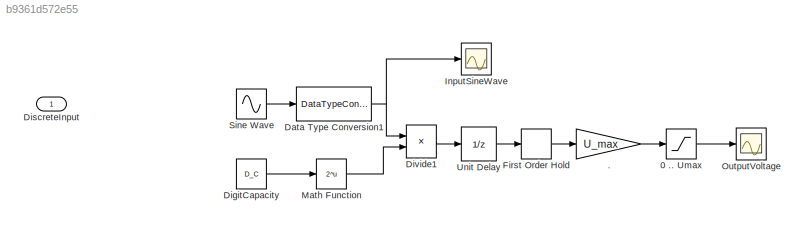
MODEL slx_b9361d572e55
KIND model
CONFIG AbsTol = auto
CONFIG EnableMultiTasking = off
CONFIG FixedStep = 0.001
CONFIG MaxStep = auto
CONFIG MinStep = auto
CONFIG RelTol = 1e-3
CONFIG SampleTimeConstraint = Unconstrained
CONFIG SolverName = FixedStepDiscrete
CONFIG StartTime = 0.0
CONFIG StopTime = 1
BLOCK [Gain] .
  Gain = U_max
BLOCK [Saturate] 0 .. Umax
  LowerLimit = 0
  UpperLimit = U_max
BLOCK [DataTypeConversion] Data Type Conversion1
  OutDataTypeStr = uint16
  RndMeth = Floor
  SaturateOnIntegerOverflow = off
BLOCK [Constant] DigitCapacity
  Value = D_C
BLOCK [Inport] DiscreteInput
BLOCK [Product] Divide1
  Inputs = */
BLOCK [FirstOrderHold] First Order Hold
  ErrorTolerance = inf
BLOCK [Scope] InputSineWave
  Floating = off
  NumInputPorts = 1
  ScopeSpecificationString = Simulink.scopes.TimeScopeBlockCfg('CurrentConfiguration', extmgr.ConfigurationSet(extmgr.Configuration('Core','General UI',true,'FigureColor',[1 1 1]),extmgr.Configuration('Core','Source UI',true),extmgr.Configuration('Sources','WiredSimulink',true,'DataLoggingVariableName','ScopeData1'),extmgr.Configuration('Visuals','Time Domain',true,'SerializedDisplays',{struct('MinYLimReal','-2047.875','MaxYL...<+1568ch>
BLOCK [Math] Math Function
  Operator = 2^u
BLOCK [Scope] OutputVoltage
  Floating = off
  NumInputPorts = 1
  ScopeSpecificationString = Simulink.scopes.TimeScopeBlockCfg('CurrentConfiguration', extmgr.ConfigurationSet(extmgr.Configuration('Core','General UI',true,'FigureColor',[1 1 1]),extmgr.Configuration('Core','Source UI',true),extmgr.Configuration('Sources','WiredSimulink',true),extmgr.Configuration('Visuals','Time Domain',true,'SerializedDisplays',{struct('MinYLimReal','-0.62496','MaxYLimReal','5.62466','YLabelReal','','MinYL...<+1477ch>
BLOCK [Sin] Sine Wave
  Amplitude = 2^D_C/2
  Bias = 2^D_C/2
  Frequency = 5
  Phase = -pi/2
  SampleTime = 0.01
BLOCK [UnitDelay] Unit Delay
  HasFrameUpgradeWarning = on
  SampleTime = -1
LINE .:1 -> 0 .. Umax:1
LINE 0 .. Umax:1 -> OutputVoltage:1
NET Data Type Conversion1:1 -> Divide1:1, InputSineWave:1
LINE DigitCapacity:1 -> Math Function:1
LINE Divide1:1 -> Unit Delay:1
LINE First Order Hold:1 -> .:1
LINE Math Function:1 -> Divide1:2
LINE Sine Wave:1 -> Data Type Conversion1:1
LINE Unit Delay:1 -> First Order Hold:1
note: NET lines group one-source signal fan-out (src -> all destinations, sorted); 1:1 wires keep LINE
